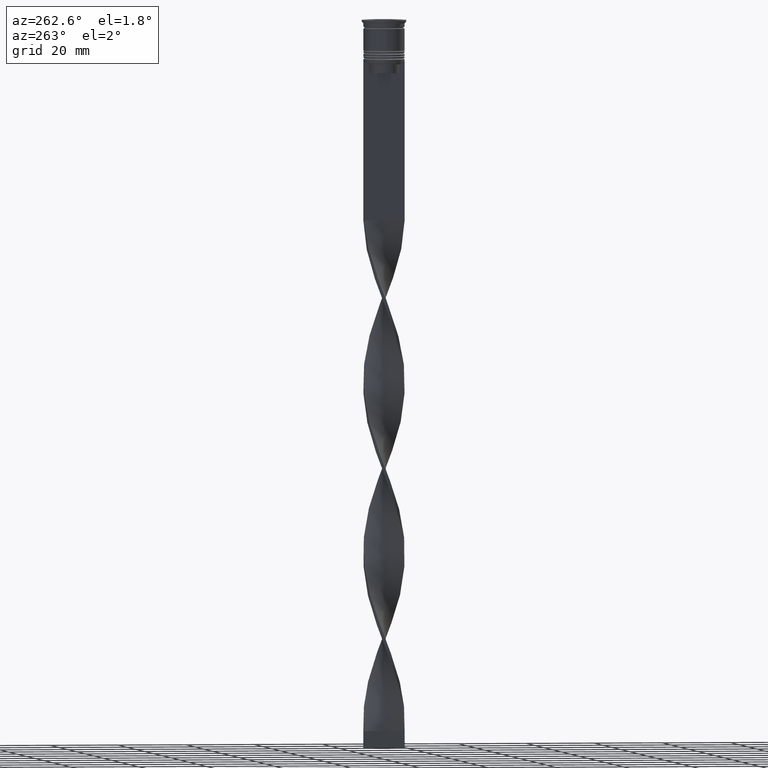
[diagram: clean part render]
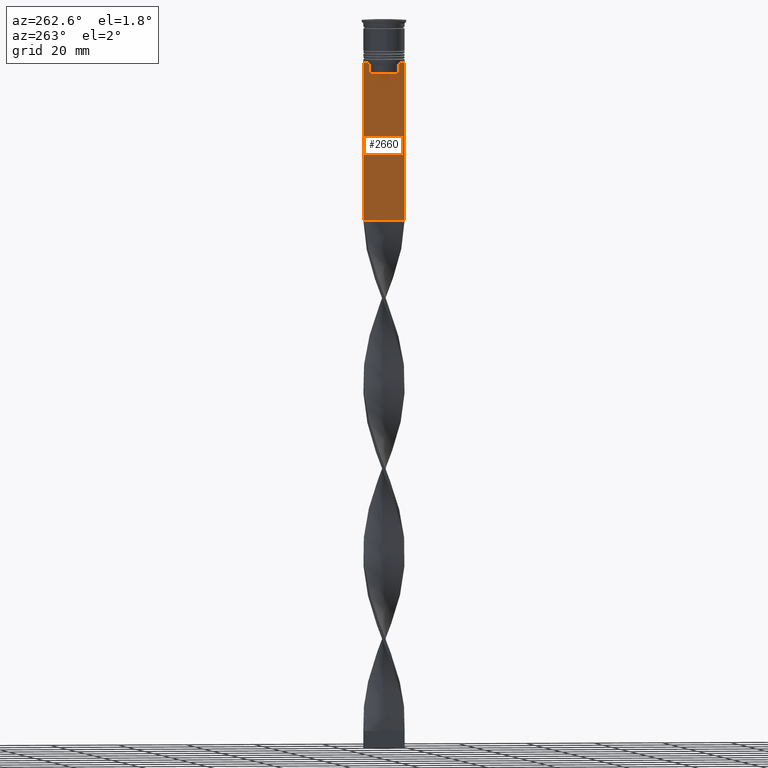
[diagram: same view with one face highlighted and labeled with its STEP entity id]
A machine part, auxiliary view. The second image highlights one B-rep face of the part: STEP entity #2660.
In plain terms, the highlighted planar face has unit normal (-1, 0, 0).
Its self-contained STEP definition (entity closure, byte-faithful):
#69 = VECTOR ( 'NONE', #1326, 1000.000000000000000 ) ;
#80 = EDGE_CURVE ( 'NONE', #2276, #920, #3343, .T. ) ;
#110 = ORIENTED_EDGE ( 'NONE', *, *, #3323, .F. ) ;
#133 = ORIENTED_EDGE ( 'NONE', *, *, #2014, .F. ) ;
#193 = CARTESIAN_POINT ( 'NONE',  ( -0.4999999999999997780, -6.000000000000000000, -12.50000000000000000 ) ) ;
#203 = LINE ( 'NONE', #3744, #2143 ) ;
#251 = VECTOR ( 'NONE', #538, 1000.000000000000000 ) ;
#308 = DIRECTION ( 'NONE',  ( 0.000000000000000000, 0.000000000000000000, -1.000000000000000000 ) ) ;
#339 = ORIENTED_EDGE ( 'NONE', *, *, #2571, .F. ) ;
#362 = CARTESIAN_POINT ( 'NONE',  ( -0.4999999999999997780, 4.706831415367290106, -12.66671683478478982 ) ) ;
#411 = ORIENTED_EDGE ( 'NONE', *, *, #1145, .F. ) ;
#415 = CARTESIAN_POINT ( 'NONE',  ( -0.4999999999999997780, -6.000000000000000000, -12.50000000000000000 ) ) ;
#443 = VECTOR ( 'NONE', #3165, 1000.000000000000000 ) ;
#479 = LINE ( 'NONE', #2816, #69 ) ;
#506 = CARTESIAN_POINT ( 'NONE',  ( -0.4999999999999997780, -5.878775382679627626, -12.50000000000000000 ) ) ;
#517 = CARTESIAN_POINT ( 'NONE',  ( -0.4999999999999997780, 6.000000000000000888, -0.4584054212077061097 ) ) ;
#520 = EDGE_CURVE ( 'NONE', #3453, #920, #2311, .T. ) ;
#538 = DIRECTION ( 'NONE',  ( 0.000000000000000000, -1.000000000000000000, 0.000000000000000000 ) ) ;
#637 = DIRECTION ( 'NONE',  ( 0.000000000000000000, 1.000000000000000000, 0.000000000000000000 ) ) ;
#646 = CARTESIAN_POINT ( 'NONE',  ( -0.4999999999999997780, -6.000000000000000000, -12.50000000000000000 ) ) ;
#675 = CARTESIAN_POINT ( 'NONE',  ( -0.4999999999999997780, -6.000000000000000000, -0.4584054212077061097 ) ) ;
#750 = DIRECTION ( 'NONE',  ( 0.000000000000000000, -1.000000000000000000, 0.000000000000000000 ) ) ;
#920 = VERTEX_POINT ( 'NONE', #3676 ) ;
#992 = VERTEX_POINT ( 'NONE', #3709 ) ;
#1006 = DIRECTION ( 'NONE',  ( 0.000000000000000000, 0.000000000000000000, -1.000000000000000000 ) ) ;
#1051 = CARTESIAN_POINT ( 'NONE',  ( -0.4999999999999997780, -4.706831372970964544, -12.66671687695981596 ) ) ;
#1072 = CARTESIAN_POINT ( 'NONE',  ( -0.4999999999999997780, -4.371498598878878816, -13.00000000000000178 ) ) ;
#1086 = LINE ( 'NONE', #193, #251 ) ;
#1090 = VERTEX_POINT ( 'NONE', #2306 ) ;
#1105 = VECTOR ( 'NONE', #637, 1000.000000000000000 ) ;
#1145 = EDGE_CURVE ( 'NONE', #3692, #992, #203, .T. ) ;
#1242 = VECTOR ( 'NONE', #2026, 1000.000000000000000 ) ;
#1253 = FACE_OUTER_BOUND ( 'NONE', #3411, .T. ) ;
#1326 = DIRECTION ( 'NONE',  ( -0.000000000000000000, -0.000000000000000000, 1.000000000000000000 ) ) ;
#1347 = CARTESIAN_POINT ( 'NONE',  ( -0.4999999999999997780, -6.000000000000000000, -58.50000000000000000 ) ) ;
#1349 = ORIENTED_EDGE ( 'NONE', *, *, #2183, .F. ) ;
#1376 = DIRECTION ( 'NONE',  ( 0.000000000000000000, -1.000000000000000000, 0.000000000000000000 ) ) ;
#1379 = ORIENTED_EDGE ( 'NONE', *, *, #80, .F. ) ;
#1511 = CARTESIAN_POINT ( 'NONE',  ( -0.4999999999999997780, 4.371498598878878816, 0.000000000000000000 ) ) ;
#1566 = CARTESIAN_POINT ( 'NONE',  ( -0.4999999999999997780, 4.874423042781576676, -12.50000000000000000 ) ) ;
#1570 = LINE ( 'NONE', #646, #3582 ) ;
#1586 = DIRECTION ( 'NONE',  ( 0.000000000000000000, -1.000000000000000000, 0.000000000000000000 ) ) ;
#1627 = CARTESIAN_POINT ( 'NONE',  ( -0.4999999999999997780, -4.539195586926424220, -12.83338928448044136 ) ) ;
#1641 = VERTEX_POINT ( 'NONE', #3451 ) ;
#1869 = VERTEX_POINT ( 'NONE', #2709 ) ;
#1884 = LINE ( 'NONE', #3090, #3158 ) ;
#1905 = CARTESIAN_POINT ( 'NONE',  ( -0.4999999999999997780, 6.000000000000001776, -12.50000000000000000 ) ) ;
#2014 = EDGE_CURVE ( 'NONE', #1090, #3247, #1570, .T. ) ;
#2026 = DIRECTION ( 'NONE',  ( 0.000000000000000000, 0.000000000000000000, -1.000000000000000000 ) ) ;
#2055 = CARTESIAN_POINT ( 'NONE',  ( -0.4999999999999997780, -4.371498598878878816, -13.00000000000000178 ) ) ;
#2143 = VECTOR ( 'NONE', #1376, 1000.000000000000000 ) ;
#2183 = EDGE_CURVE ( 'NONE', #3849, #3682, #3035, .T. ) ;
#2233 = ORIENTED_EDGE ( 'NONE', *, *, #2739, .F. ) ;
#2276 = VERTEX_POINT ( 'NONE', #1347 ) ;
#2306 = CARTESIAN_POINT ( 'NONE',  ( -0.4999999999999997780, 5.878775382679627626, -12.50000000000000000 ) ) ;
#2311 = LINE ( 'NONE', #517, #1242 ) ;
#2463 = DIRECTION ( 'NONE',  ( -1.000000000000000000, 0.000000000000000000, 0.000000000000000000 ) ) ;
#2484 = ORIENTED_EDGE ( 'NONE', *, *, #520, .T. ) ;
#2571 = EDGE_CURVE ( 'NONE', #3247, #1641, #3873, .T. ) ;
#2606 = CARTESIAN_POINT ( 'NONE',  ( -0.4999999999999997780, -4.874423042781576676, -12.50000000000000000 ) ) ;
#2660 = ADVANCED_FACE ( 'NONE', ( #1253 ), #3382, .T. ) ;
#2694 = ORIENTED_EDGE ( 'NONE', *, *, #3397, .F. ) ;
#2709 = CARTESIAN_POINT ( 'NONE',  ( -0.4999999999999997780, -4.371498598878878816, -15.50000000000000000 ) ) ;
#2722 = CARTESIAN_POINT ( 'NONE',  ( -0.4999999999999997780, 4.371498598878878816, -15.50000000000000000 ) ) ;
#2739 = EDGE_CURVE ( 'NONE', #1641, #3270, #3013, .T. ) ;
#2753 = CARTESIAN_POINT ( 'NONE',  ( -0.4999999999999997780, -6.000000000000000000, -58.50000000000000000 ) ) ;
#2760 = CARTESIAN_POINT ( 'NONE',  ( -0.4999999999999997780, 4.539195634199897356, -12.83338923751318816 ) ) ;
#2786 = ORIENTED_EDGE ( 'NONE', *, *, #3429, .F. ) ;
#2787 = EDGE_CURVE ( 'NONE', #1869, #3849, #479, .T. ) ;
#2799 = DIRECTION ( 'NONE',  ( 0.000000000000000000, 0.000000000000000000, 1.000000000000000000 ) ) ;
#2812 = ORIENTED_EDGE ( 'NONE', *, *, #2787, .F. ) ;
#2816 = CARTESIAN_POINT ( 'NONE',  ( -0.4999999999999997780, -4.371498598878878816, 0.000000000000000000 ) ) ;
#2844 = VECTOR ( 'NONE', #750, 1000.000000000000000 ) ;
#2877 = CARTESIAN_POINT ( 'NONE',  ( -0.4999999999999997780, -4.874423042781576676, -12.50000000000000000 ) ) ;
#2991 = EDGE_CURVE ( 'NONE', #3453, #1090, #1086, .T. ) ;
#3013 = LINE ( 'NONE', #1511, #3273 ) ;
#3035 = B_SPLINE_CURVE_WITH_KNOTS ( 'NONE', 3,
 ( #1072, #1627, #1051, #2877 ),
 .UNSPECIFIED., .F., .F.,
 ( 4, 4 ),
 ( 0.02089901220910806920, 0.02161421017310284978 ),
 .UNSPECIFIED. ) ;
#3090 = CARTESIAN_POINT ( 'NONE',  ( -0.4999999999999997780, -6.000000000000000000, -0.4584054212077061097 ) ) ;
#3091 = AXIS2_PLACEMENT_3D ( 'NONE', #675, #2463, #2799 ) ;
#3145 = LINE ( 'NONE', #3419, #443 ) ;
#3158 = VECTOR ( 'NONE', #1006, 1000.000000000000000 ) ;
#3165 = DIRECTION ( 'NONE',  ( 0.000000000000000000, -1.000000000000000000, 0.000000000000000000 ) ) ;
#3247 = VERTEX_POINT ( 'NONE', #3302 ) ;
#3270 = VERTEX_POINT ( 'NONE', #2722 ) ;
#3273 = VECTOR ( 'NONE', #308, 1000.000000000000000 ) ;
#3302 = CARTESIAN_POINT ( 'NONE',  ( -0.4999999999999997780, 4.874423042781576676, -12.50000000000000000 ) ) ;
#3323 = EDGE_CURVE ( 'NONE', #3270, #1869, #3145, .T. ) ;
#3343 = LINE ( 'NONE', #2753, #1105 ) ;
#3349 = CARTESIAN_POINT ( 'NONE',  ( -0.4999999999999997780, 4.371498598878878816, -13.00000000000000178 ) ) ;
#3382 = PLANE ( 'NONE',  #3091 ) ;
#3397 = EDGE_CURVE ( 'NONE', #3682, #3692, #3398, .T. ) ;
#3398 = LINE ( 'NONE', #415, #2844 ) ;
#3411 = EDGE_LOOP ( 'NONE', ( #339, #133, #3425, #2484, #1379, #2786, #411, #2694, #1349, #2812, #110, #2233 ) ) ;
#3419 = CARTESIAN_POINT ( 'NONE',  ( -0.4999999999999997780, 4.399999999999999467, -15.50000000000000000 ) ) ;
#3425 = ORIENTED_EDGE ( 'NONE', *, *, #2991, .F. ) ;
#3429 = EDGE_CURVE ( 'NONE', #992, #2276, #1884, .T. ) ;
#3451 = CARTESIAN_POINT ( 'NONE',  ( -0.4999999999999997780, 4.371498598878878816, -13.00000000000000178 ) ) ;
#3453 = VERTEX_POINT ( 'NONE', #1905 ) ;
#3582 = VECTOR ( 'NONE', #1586, 1000.000000000000000 ) ;
#3676 = CARTESIAN_POINT ( 'NONE',  ( -0.4999999999999997780, 6.000000000000000888, -58.50000000000000000 ) ) ;
#3682 = VERTEX_POINT ( 'NONE', #2606 ) ;
#3692 = VERTEX_POINT ( 'NONE', #506 ) ;
#3709 = CARTESIAN_POINT ( 'NONE',  ( -0.4999999999999997780, -6.000000000000000000, -12.50000000000000000 ) ) ;
#3744 = CARTESIAN_POINT ( 'NONE',  ( -0.4999999999999997780, -6.000000000000000000, -12.50000000000000000 ) ) ;
#3849 = VERTEX_POINT ( 'NONE', #2055 ) ;
#3873 = B_SPLINE_CURVE_WITH_KNOTS ( 'NONE', 3,
 ( #1566, #362, #2760, #3349 ),
 .UNSPECIFIED., .F., .F.,
 ( 4, 4 ),
 ( 0.008336552452178418518, 0.009045730124312837891 ),
 .UNSPECIFIED. ) ;